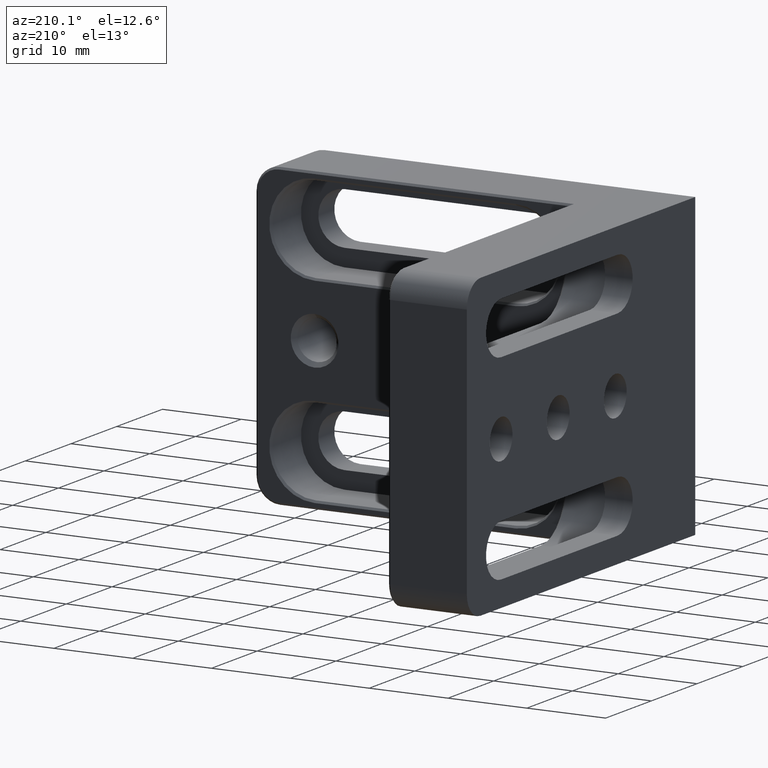
[diagram: clean part render]
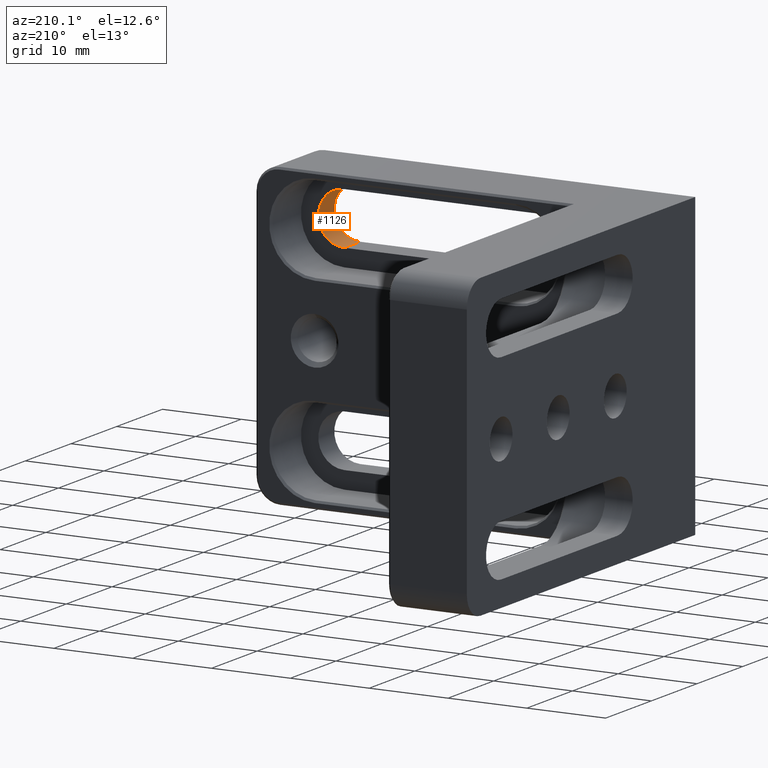
[diagram: same view with one face highlighted and labeled with its STEP entity id]
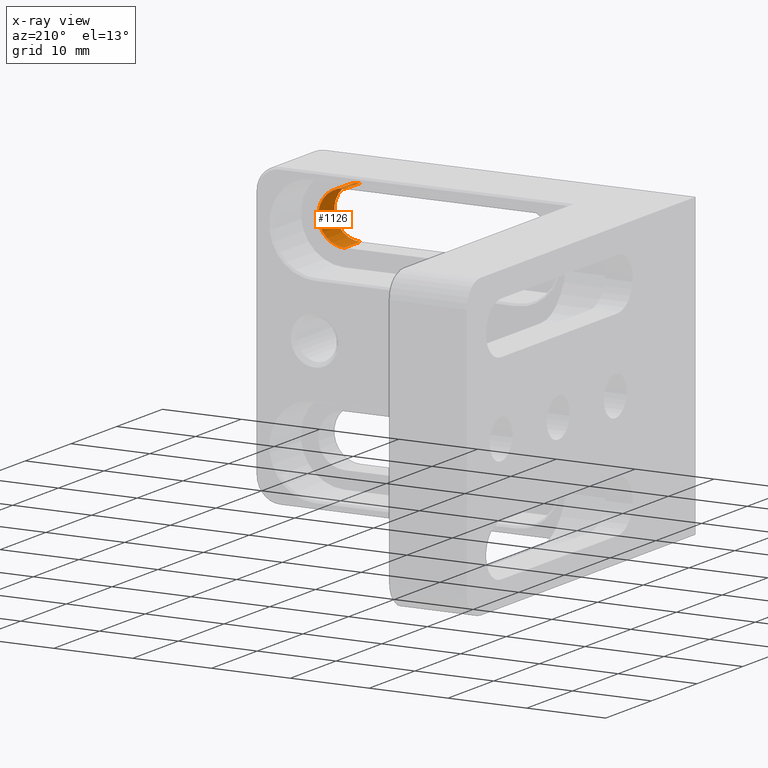
[diagram: x-ray of the same camera — body ghosted, the highlighted face saturated]
A machine part, auxiliary view. The second image highlights one B-rep face of the part: STEP entity #1126.
The next image is the same camera in x-ray: the body ghosted, the highlighted face saturated — about 1% of this face is hidden behind the body in this view.
In plain terms, the highlighted cylindrical surface (edge-blend (fillet) strip) has radius 3.3 mm, axis along (-0, 1, -0).
Its self-contained STEP definition (entity closure, byte-faithful):
#31 = CARTESIAN_POINT ( 'NONE',  ( 17.49999999999999645, -2.999999999999999112, 9.199999999999999289 ) ) ;
#45 = EDGE_CURVE ( 'NONE', #1989, #1274, #2114, .T. ) ;
#56 = CYLINDRICAL_SURFACE ( 'NONE', #2335, 3.300000000000000711 ) ;
#122 = ORIENTED_EDGE ( 'NONE', *, *, #1238, .T. ) ;
#211 = VERTEX_POINT ( 'NONE', #2042 ) ;
#228 = LINE ( 'NONE', #31, #2506 ) ;
#310 = CARTESIAN_POINT ( 'NONE',  ( 17.49999999999999645, 3.500000000000000444, 12.50000000000000000 ) ) ;
#315 = DIRECTION ( 'NONE',  ( -0.000000000000000000, 1.000000000000000000, -0.000000000000000000 ) ) ;
#427 = FACE_OUTER_BOUND ( 'NONE', #2435, .T. ) ;
#634 = AXIS2_PLACEMENT_3D ( 'NONE', #2000, #1632, #2256 ) ;
#791 = CIRCLE ( 'NONE', #1933, 3.300000000000000711 ) ;
#839 = DIRECTION ( 'NONE',  ( -0.000000000000000000, 1.000000000000000000, -0.000000000000000000 ) ) ;
#908 = ORIENTED_EDGE ( 'NONE', *, *, #45, .T. ) ;
#1077 = DIRECTION ( 'NONE',  ( -0.000000000000000000, 1.000000000000000000, -0.000000000000000000 ) ) ;
#1091 = CARTESIAN_POINT ( 'NONE',  ( 17.49999999999999645, -8.673617379884035472E-16, 9.199999999999999289 ) ) ;
#1126 = ADVANCED_FACE ( 'NONE', ( #427 ), #56, .F. ) ;
#1236 = DIRECTION ( 'NONE',  ( 0.000000000000000000, 0.000000000000000000, 1.000000000000000000 ) ) ;
#1238 = EDGE_CURVE ( 'NONE', #1274, #211, #1501, .T. ) ;
#1274 = VERTEX_POINT ( 'NONE', #1544 ) ;
#1326 = CARTESIAN_POINT ( 'NONE',  ( 17.49999999999999645, -2.999999999999999112, 15.80000000000000071 ) ) ;
#1501 = LINE ( 'NONE', #1326, #2418 ) ;
#1512 = EDGE_CURVE ( 'NONE', #1986, #211, #791, .T. ) ;
#1544 = CARTESIAN_POINT ( 'NONE',  ( 17.49999999999999645, 0.000000000000000000, 15.80000000000000071 ) ) ;
#1632 = DIRECTION ( 'NONE',  ( -0.000000000000000000, -1.000000000000000000, -0.000000000000000000 ) ) ;
#1732 = EDGE_CURVE ( 'NONE', #1989, #1986, #228, .T. ) ;
#1933 = AXIS2_PLACEMENT_3D ( 'NONE', #310, #2322, #2118 ) ;
#1986 = VERTEX_POINT ( 'NONE', #2535 ) ;
#1989 = VERTEX_POINT ( 'NONE', #1091 ) ;
#2000 = CARTESIAN_POINT ( 'NONE',  ( 17.49999999999999645, 0.000000000000000000, 12.50000000000000000 ) ) ;
#2042 = CARTESIAN_POINT ( 'NONE',  ( 17.49999999999999645, 3.500000000000000444, 15.80000000000000071 ) ) ;
#2046 = ORIENTED_EDGE ( 'NONE', *, *, #1512, .F. ) ;
#2114 = CIRCLE ( 'NONE', #634, 3.300000000000000711 ) ;
#2118 = DIRECTION ( 'NONE',  ( 0.000000000000000000, 0.000000000000000000, -1.000000000000000000 ) ) ;
#2256 = DIRECTION ( 'NONE',  ( 0.000000000000000000, 0.000000000000000000, 1.000000000000000000 ) ) ;
#2262 = CARTESIAN_POINT ( 'NONE',  ( 17.49999999999999645, -2.999999999999999112, 12.50000000000000000 ) ) ;
#2322 = DIRECTION ( 'NONE',  ( -0.000000000000000000, -1.000000000000000000, -0.000000000000000000 ) ) ;
#2335 = AXIS2_PLACEMENT_3D ( 'NONE', #2262, #1077, #1236 ) ;
#2386 = ORIENTED_EDGE ( 'NONE', *, *, #1732, .F. ) ;
#2418 = VECTOR ( 'NONE', #315, 1000.000000000000000 ) ;
#2435 = EDGE_LOOP ( 'NONE', ( #908, #122, #2046, #2386 ) ) ;
#2506 = VECTOR ( 'NONE', #839, 1000.000000000000000 ) ;
#2535 = CARTESIAN_POINT ( 'NONE',  ( 17.49999999999999645, 3.500000000000000444, 9.199999999999999289 ) ) ;